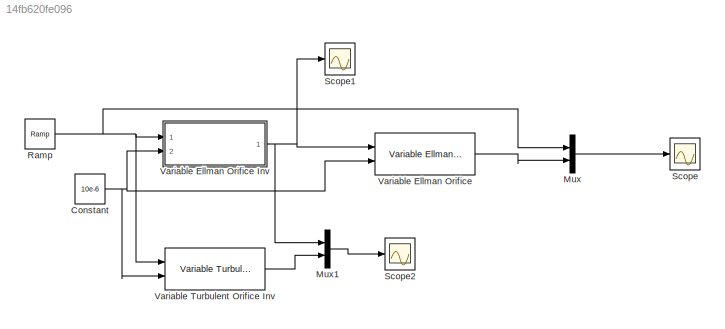
MODEL slx_14fb620fe096
KIND model
CONFIG AbsTol = auto
CONFIG EnableMultiTasking = off
CONFIG FixedStep = auto
CONFIG MaxStep = auto
CONFIG MinStep = auto
CONFIG RelTol = 1e-3
CONFIG SampleTimeConstraint = Unconstrained
CONFIG Solver = VariableStepAuto
CONFIG SolverName = VariableStepAuto
CONFIG StartTime = 0.0
CONFIG StopTime = 1
BLOCK [Constant] Constant
  Value = 10e-6
BLOCK [Mux] Mux
  DisplayOption = bar
  Inputs = 2
  Ports = [2, 1]
BLOCK [Mux] Mux1
  DisplayOption = bar
  Inputs = 2
  Ports = [2, 1]
BLOCK [Reference] Ramp  REF=simulink/Sources/Ramp
  Ports = [0, 1]
  SourceBlock = simulink/Sources/Ramp
  SourceProductBaseCode = SL
  SourceProductName = Simulink
  SourceType = Ramp
BLOCK [Scope] Scope
  NumInputPorts = 1
  Ports = [1]
  ScopeSpecificationString = Simulink.scopes.TimeScopeBlockCfg('CurrentConfiguration', extmgr.ConfigurationSet(extmgr.Configuration('Core','General UI',true),extmgr.Configuration('Core','Source UI',true),extmgr.Configuration('Sources','WiredSimulink',true),extmgr.Configuration('Visuals','Time Domain',true,'SerializedDisplays',{struct('MinYLimReal','-0.0000004','MaxYLimReal','0.0000034','YLabelReal','','MinYLimMag','0.0000000'...<+1395ch>
BLOCK [Scope] Scope1
  NumInputPorts = 1
  Ports = [1]
  ScopeSpecificationString = Simulink.scopes.TimeScopeBlockCfg('CurrentConfiguration', extmgr.ConfigurationSet(extmgr.Configuration('Core','General UI',true),extmgr.Configuration('Core','Source UI',true),extmgr.Configuration('Sources','WiredSimulink',true,'DataLoggingVariableName','ScopeData1'),extmgr.Configuration('Visuals','Time Domain',true,'SerializedDisplays',{struct('MinYLimReal','-12.09352','MaxYLimReal','108.84171','Y...<+1451ch>
BLOCK [Scope] Scope2
  NumInputPorts = 1
  Ports = [1]
  ScopeSpecificationString = Simulink.scopes.TimeScopeBlockCfg('CurrentConfiguration', extmgr.ConfigurationSet(extmgr.Configuration('Core','General UI',true),extmgr.Configuration('Core','Source UI',true),extmgr.Configuration('Sources','WiredSimulink',true,'DataLoggingVariableName','ScopeData2'),extmgr.Configuration('Visuals','Time Domain',true,'SerializedDisplays',{struct('MinYLimReal','-12.09352','MaxYLimReal','108.84171','Y...<+1476ch>
BLOCK [Reference] Variable Ellman Orifice  REF=usask_hyd_lib_simulink/Variable Ellman Orifice  (lib defined in slx_bbd00ce489cf)
  Ports = [2, 1]
  SourceBlock = usask_hyd_lib_simulink/Variable Ellman Orifice
  SourceProductName = USask Hydraulic Library Simulink
  SourceType = Turbulent Orifice
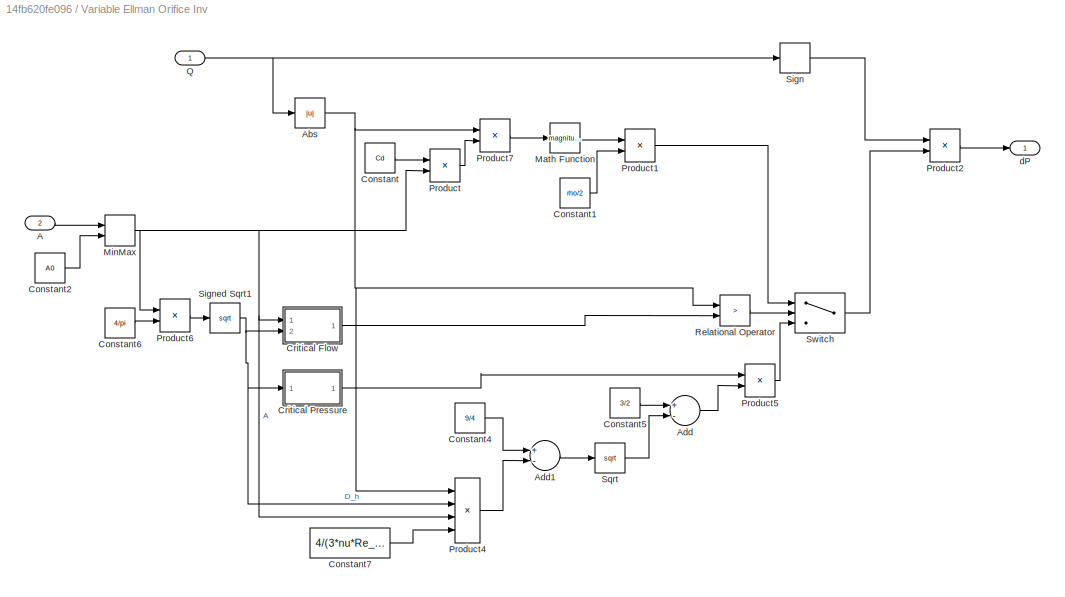
BLOCK [SubSystem] Variable Ellman Orifice Inv
  Ports = [2, 1]
  RequestExecContextInheritance = off
  Variant = off
BLOCK [Inport] Variable Ellman Orifice Inv/A
  IconDisplay = Port number
  Port = 2
BLOCK [Abs] Variable Ellman Orifice Inv/Abs
  SaturateOnIntegerOverflow = off
BLOCK [Sum] Variable Ellman Orifice Inv/Add
  InputSameDT = off
  Inputs = +-
  OutDataTypeStr = Inherit: Inherit via internal rule
  Ports = [2, 1]
  SaturateOnIntegerOverflow = off
BLOCK [Sum] Variable Ellman Orifice Inv/Add1
  InputSameDT = off
  Inputs = +-
  OutDataTypeStr = Inherit: Inherit via internal rule
  Ports = [2, 1]
  SaturateOnIntegerOverflow = off
BLOCK [Constant] Variable Ellman Orifice Inv/Constant
  Value = Cd
BLOCK [Constant] Variable Ellman Orifice Inv/Constant1
  Value = rho/2
BLOCK [Constant] Variable Ellman Orifice Inv/Constant2
  Value = A0
BLOCK [Constant] Variable Ellman Orifice Inv/Constant4
  Value = 9/4
BLOCK [Constant] Variable Ellman Orifice Inv/Constant5
  Value = 3/2
BLOCK [Constant] Variable Ellman Orifice Inv/Constant6
  Value = 4/pi
BLOCK [Constant] Variable Ellman Orifice Inv/Constant7
  Value = 4/(3*nu*Re_cr)
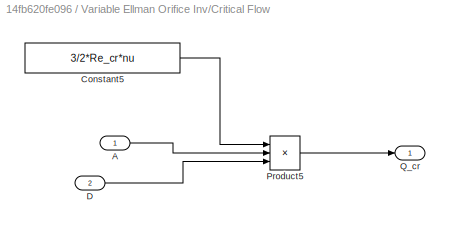
BLOCK [SubSystem] Variable Ellman Orifice Inv/Critical Flow
  Ports = [2, 1]
  RequestExecContextInheritance = off
  Variant = off
BLOCK [Inport] Variable Ellman Orifice Inv/Critical Flow/A
  IconDisplay = Port number
BLOCK [Constant] Variable Ellman Orifice Inv/Critical Flow/Constant5
  Value = 3/2*Re_cr*nu
BLOCK [Inport] Variable Ellman Orifice Inv/Critical Flow/D
  IconDisplay = Port number
  Port = 2
BLOCK [Product] Variable Ellman Orifice Inv/Critical Flow/Product5
  InputSameDT = off
  Inputs = **/
  OutDataTypeStr = Inherit: Inherit via internal rule
  Ports = [3, 1]
  RndMeth = Floor
  SaturateOnIntegerOverflow = off
BLOCK [Outport] Variable Ellman Orifice Inv/Critical Flow/Q_cr
  IconDisplay = Port number
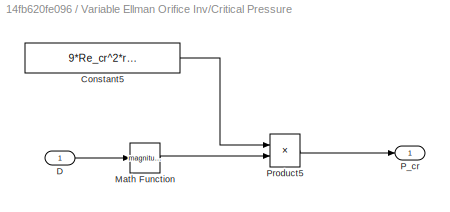
BLOCK [SubSystem] Variable Ellman Orifice Inv/Critical Pressure
  Ports = [1, 1]
  RequestExecContextInheritance = off
  Variant = off
BLOCK [Constant] Variable Ellman Orifice Inv/Critical Pressure/Constant5
  Value = 9*Re_cr^2*rho*nu^2/(8*Cd^2)
BLOCK [Inport] Variable Ellman Orifice Inv/Critical Pressure/D
  IconDisplay = Port number
BLOCK [Math] Variable Ellman Orifice Inv/Critical Pressure/Math Function
  Operator = magnitude^2
  Ports = [1, 1]
BLOCK [Outport] Variable Ellman Orifice Inv/Critical Pressure/P_cr
  IconDisplay = Port number
BLOCK [Product] Variable Ellman Orifice Inv/Critical Pressure/Product5
  InputSameDT = off
  Inputs = */
  OutDataTypeStr = Inherit: Inherit via internal rule
  Ports = [2, 1]
  RndMeth = Floor
  SaturateOnIntegerOverflow = off
BLOCK [Math] Variable Ellman Orifice Inv/Math Function
  Operator = magnitude^2
  Ports = [1, 1]
BLOCK [MinMax] Variable Ellman Orifice Inv/MinMax
  Function = max
  InputSameDT = off
  Inputs = 2
  Ports = [2, 1]
  SaturateOnIntegerOverflow = off
BLOCK [Product] Variable Ellman Orifice Inv/Product
  InputSameDT = off
  OutDataTypeStr = Inherit: Inherit via internal rule
  Ports = [2, 1]
  RndMeth = Floor
  SaturateOnIntegerOverflow = off
BLOCK [Product] Variable Ellman Orifice Inv/Product1
  InputSameDT = off
  OutDataTypeStr = Inherit: Inherit via internal rule
  Ports = [2, 1]
  RndMeth = Floor
  SaturateOnIntegerOverflow = off
BLOCK [Product] Variable Ellman Orifice Inv/Product2
  InputSameDT = off
  OutDataTypeStr = Inherit: Inherit via internal rule
  Ports = [2, 1]
  RndMeth = Floor
  SaturateOnIntegerOverflow = off
BLOCK [Product] Variable Ellman Orifice Inv/Product4
  InputSameDT = off
  Inputs = **/*
  OutDataTypeStr = Inherit: Inherit via internal rule
  Ports = [4, 1]
  RndMeth = Floor
  SaturateOnIntegerOverflow = off
BLOCK [Product] Variable Ellman Orifice Inv/Product5
  InputSameDT = off
  Inputs = **
  OutDataTypeStr = Inherit: Inherit via internal rule
  Ports = [2, 1]
  RndMeth = Floor
  SaturateOnIntegerOverflow = off
BLOCK [Product] Variable Ellman Orifice Inv/Product6
  InputSameDT = off
  OutDataTypeStr = Inherit: Inherit via internal rule
  Ports = [2, 1]
  RndMeth = Floor
  SaturateOnIntegerOverflow = off
BLOCK [Product] Variable Ellman Orifice Inv/Product7
  InputSameDT = off
  Inputs = */
  OutDataTypeStr = Inherit: Inherit via internal rule
  Ports = [2, 1]
  RndMeth = Floor
  SaturateOnIntegerOverflow = off
BLOCK [Inport] Variable Ellman Orifice Inv/Q
  IconDisplay = Port number
BLOCK [RelationalOperator] Variable Ellman Orifice Inv/Relational Operator
  InputSameDT = off
  Operator = >
  OutDataTypeStr = boolean
  Ports = [2, 1]
BLOCK [Signum] Variable Ellman Orifice Inv/Sign
BLOCK [Sqrt] Variable Ellman Orifice Inv/Signed Sqrt1
BLOCK [Sqrt] Variable Ellman Orifice Inv/Sqrt
BLOCK [Switch] Variable Ellman Orifice Inv/Switch
  Criteria = u2 ~= 0
  InputSameDT = off
  SaturateOnIntegerOverflow = off
BLOCK [Outport] Variable Ellman Orifice Inv/dP
  IconDisplay = Port number
BLOCK [Reference] Variable Turbulent Orifice Inv  REF=usask_hyd_lib_simulink/Variable Turbulent Orifice Inv  (lib defined in slx_bbd00ce489cf)
  Ports = [2, 1]
  SourceBlock = usask_hyd_lib_simulink/Variable Turbulent Orifice Inv
  SourceProductName = USask Hydraulic Library Simulink
  SourceType = Turbulent Orifice
NET Constant:1 -> Variable Ellman Orifice Inv:2, Variable Ellman Orifice:2, Variable Turbulent Orifice Inv:2
LINE Mux1:1 -> Scope2:1
LINE Mux:1 -> Scope:1
NET Ramp:1 -> Mux:1, Variable Ellman Orifice Inv:1, Variable Turbulent Orifice Inv:1
LINE Variable Ellman Orifice Inv/A:1 -> Variable Ellman Orifice Inv/MinMax:1
NET Variable Ellman Orifice Inv/Abs:1 -> Variable Ellman Orifice Inv/Product4:1, Variable Ellman Orifice Inv/Product7:1, Variable Ellman Orifice Inv/Relational Operator:1
LINE Variable Ellman Orifice Inv/Add1:1 -> Variable Ellman Orifice Inv/Sqrt:1
LINE Variable Ellman Orifice Inv/Add:1 -> Variable Ellman Orifice Inv/Product5:2
LINE Variable Ellman Orifice Inv/Constant1:1 -> Variable Ellman Orifice Inv/Product1:2
LINE Variable Ellman Orifice Inv/Constant2:1 -> Variable Ellman Orifice Inv/MinMax:2
LINE Variable Ellman Orifice Inv/Constant4:1 -> Variable Ellman Orifice Inv/Add1:1
LINE Variable Ellman Orifice Inv/Constant5:1 -> Variable Ellman Orifice Inv/Add:1
LINE Variable Ellman Orifice Inv/Constant6:1 -> Variable Ellman Orifice Inv/Product6:2
LINE Variable Ellman Orifice Inv/Constant7:1 -> Variable Ellman Orifice Inv/Product4:4
LINE Variable Ellman Orifice Inv/Constant:1 -> Variable Ellman Orifice Inv/Product:1
LINE Variable Ellman Orifice Inv/Critical Flow/A:1 -> Variable Ellman Orifice Inv/Critical Flow/Product5:2
LINE Variable Ellman Orifice Inv/Critical Flow/Constant5:1 -> Variable Ellman Orifice Inv/Critical Flow/Product5:1
LINE Variable Ellman Orifice Inv/Critical Flow/D:1 -> Variable Ellman Orifice Inv/Critical Flow/Product5:3
LINE Variable Ellman Orifice Inv/Critical Flow/Product5:1 -> Variable Ellman Orifice Inv/Critical Flow/Q_cr:1
LINE Variable Ellman Orifice Inv/Critical Flow:1 -> Variable Ellman Orifice Inv/Relational Operator:2
LINE Variable Ellman Orifice Inv/Critical Pressure/Constant5:1 -> Variable Ellman Orifice Inv/Critical Pressure/Product5:1
LINE Variable Ellman Orifice Inv/Critical Pressure/D:1 -> Variable Ellman Orifice Inv/Critical Pressure/Math Function:1
LINE Variable Ellman Orifice Inv/Critical Pressure/Math Function:1 -> Variable Ellman Orifice Inv/Critical Pressure/Product5:2
LINE Variable Ellman Orifice Inv/Critical Pressure/Product5:1 -> Variable Ellman Orifice Inv/Critical Pressure/P_cr:1
LINE Variable Ellman Orifice Inv/Critical Pressure:1 -> Variable Ellman Orifice Inv/Product5:1
LINE Variable Ellman Orifice Inv/Math Function:1 -> Variable Ellman Orifice Inv/Product1:1
NET Variable Ellman Orifice Inv/MinMax:1 -> Variable Ellman Orifice Inv/Critical Flow:1, Variable Ellman Orifice Inv/Product4:3, Variable Ellman Orifice Inv/Product6:1, Variable Ellman Orifice Inv/Product:2
LINE Variable Ellman Orifice Inv/Product1:1 -> Variable Ellman Orifice Inv/Switch:1
LINE Variable Ellman Orifice Inv/Product2:1 -> Variable Ellman Orifice Inv/dP:1
LINE Variable Ellman Orifice Inv/Product4:1 -> Variable Ellman Orifice Inv/Add1:2
LINE Variable Ellman Orifice Inv/Product5:1 -> Variable Ellman Orifice Inv/Switch:3
LINE Variable Ellman Orifice Inv/Product6:1 -> Variable Ellman Orifice Inv/Signed Sqrt1:1
LINE Variable Ellman Orifice Inv/Product7:1 -> Variable Ellman Orifice Inv/Math Function:1
LINE Variable Ellman Orifice Inv/Product:1 -> Variable Ellman Orifice Inv/Product7:2
NET Variable Ellman Orifice Inv/Q:1 -> Variable Ellman Orifice Inv/Abs:1, Variable Ellman Orifice Inv/Sign:1
LINE Variable Ellman Orifice Inv/Relational Operator:1 -> Variable Ellman Orifice Inv/Switch:2
LINE Variable Ellman Orifice Inv/Sign:1 -> Variable Ellman Orifice Inv/Product2:1
NET Variable Ellman Orifice Inv/Signed Sqrt1:1 -> Variable Ellman Orifice Inv/Critical Flow:2, Variable Ellman Orifice Inv/Critical Pressure:1, Variable Ellman Orifice Inv/Product4:2
LINE Variable Ellman Orifice Inv/Sqrt:1 -> Variable Ellman Orifice Inv/Add:2
LINE Variable Ellman Orifice Inv/Switch:1 -> Variable Ellman Orifice Inv/Product2:2
NET Variable Ellman Orifice Inv:1 -> Mux1:1, Scope1:1, Variable Ellman Orifice:1
LINE Variable Ellman Orifice:1 -> Mux:2
LINE Variable Turbulent Orifice Inv:1 -> Mux1:2
note: NET lines group one-source signal fan-out (src -> all destinations, sorted); 1:1 wires keep LINE
